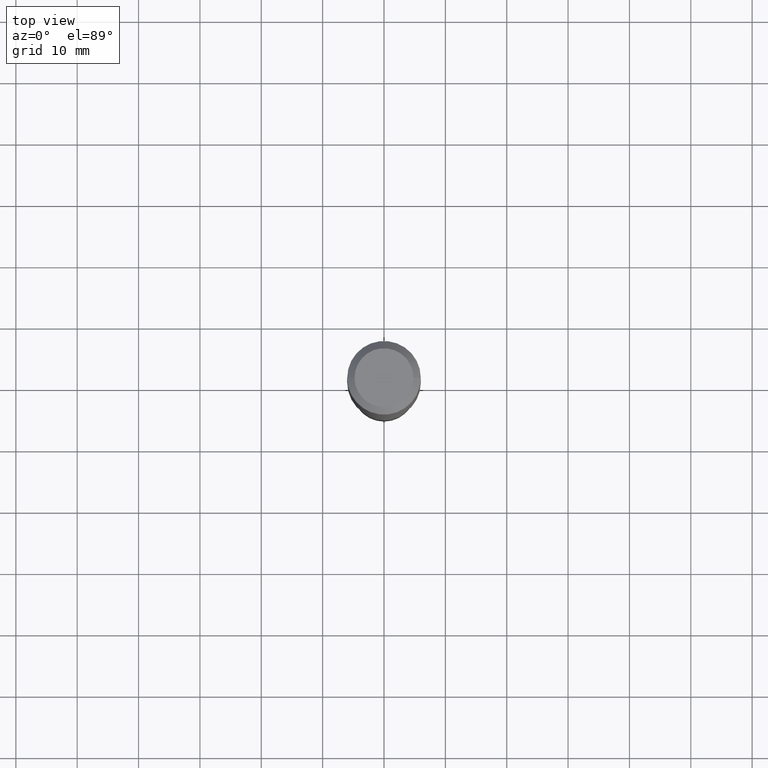
[diagram: clean part render]
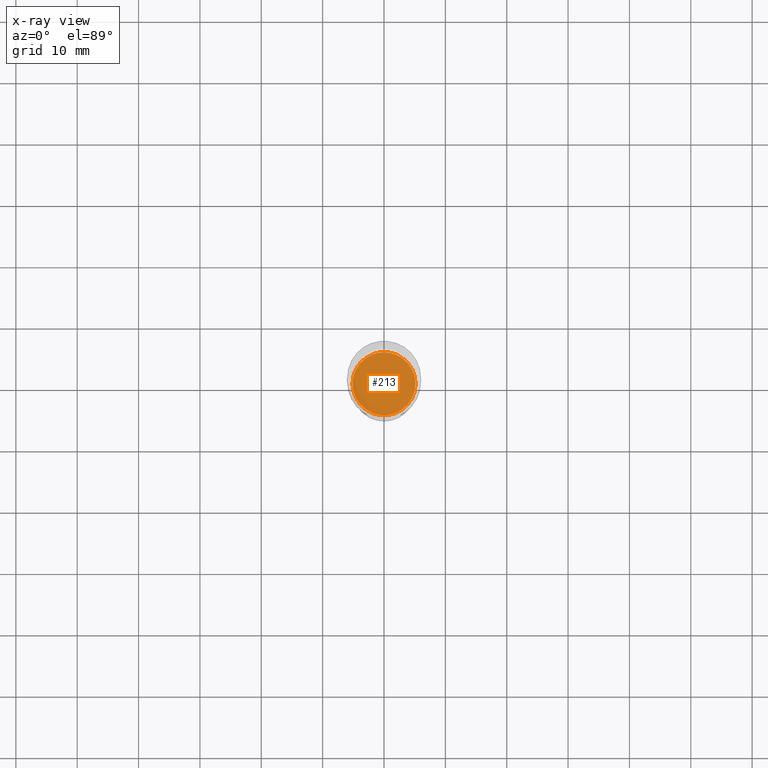
[diagram: x-ray — body ghosted, one internal face saturated and labeled with its STEP entity id]
A machine part, top view, then the same camera in x-ray: the body is ghosted and one INTERNAL B-rep face — a face not visible from any outside direction — is saturated and labeled: STEP entity #213.
In plain terms, the highlighted planar face has unit normal (-0, 0, 1).
Its self-contained STEP definition (entity closure, byte-faithful):
#54 = CARTESIAN_POINT ( 'NONE',  ( 5.516733079873047692E-29, -7.876432752296249824E-15, -2.255899999999999128 ) ) ;
#55 = CIRCLE ( 'NONE', #444, 0.2022500000000000131 ) ;
#128 = FACE_OUTER_BOUND ( 'NONE', #381, .T. ) ;
#143 = DIRECTION ( 'NONE',  ( -2.438088387897960049E-29, 3.491481338843145188E-15, 1.000000000000000000 ) ) ;
#145 = AXIS2_PLACEMENT_3D ( 'NONE', #366, #265, #177 ) ;
#166 = VERTEX_POINT ( 'NONE', #373 ) ;
#169 = EDGE_CURVE ( 'NONE', #280, #166, #235, .T. ) ;
#177 = DIRECTION ( 'NONE',  ( 1.000000000000000000, -6.982962677686268288E-15, 0.000000000000000000 ) ) ;
#181 = EDGE_CURVE ( 'NONE', #166, #280, #55, .T. ) ;
#189 = DIRECTION ( 'NONE',  ( -2.445468806185136597E-29, 3.491481338843145583E-15, 1.000000000000000000 ) ) ;
#213 = ADVANCED_FACE ( 'NONE', ( #128 ), #438, .F. ) ;
#235 = CIRCLE ( 'NONE', #145, 0.2022500000000000131 ) ;
#265 = DIRECTION ( 'NONE',  ( -2.445468806185136597E-29, 3.491481338843145583E-15, 1.000000000000000000 ) ) ;
#280 = VERTEX_POINT ( 'NONE', #291 ) ;
#286 = CARTESIAN_POINT ( 'NONE',  ( 5.516733079873047692E-29, -7.876432752296249824E-15, -2.255899999999999128 ) ) ;
#291 = CARTESIAN_POINT ( 'NONE',  ( 0.2022500000000000131, -9.288736953858297487E-15, -2.255899999999999128 ) ) ;
#295 = DIRECTION ( 'NONE',  ( 1.000000000000000000, -6.982962677686268288E-15, 0.000000000000000000 ) ) ;
#315 = ORIENTED_EDGE ( 'NONE', *, *, #181, .F. ) ;
#366 = CARTESIAN_POINT ( 'NONE',  ( 5.516733079873047692E-29, -7.876432752296249824E-15, -2.255899999999999128 ) ) ;
#368 = AXIS2_PLACEMENT_3D ( 'NONE', #286, #143, #442 ) ;
#373 = CARTESIAN_POINT ( 'NONE',  ( -0.2022500000000000131, -6.436710842047335707E-15, -2.255899999999999128 ) ) ;
#381 = EDGE_LOOP ( 'NONE', ( #429, #315 ) ) ;
#429 = ORIENTED_EDGE ( 'NONE', *, *, #169, .F. ) ;
#438 = PLANE ( 'NONE',  #368 ) ;
#442 = DIRECTION ( 'NONE',  ( 1.000000000000000000, -6.982962677686265922E-15, 4.876176775795935793E-29 ) ) ;
#444 = AXIS2_PLACEMENT_3D ( 'NONE', #54, #189, #295 ) ;